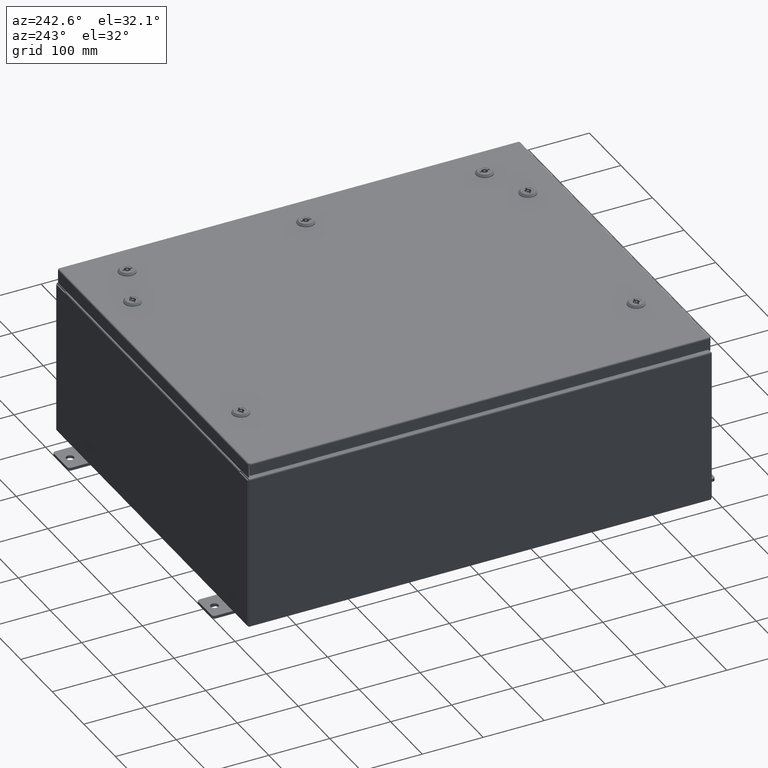
[diagram: clean part render]
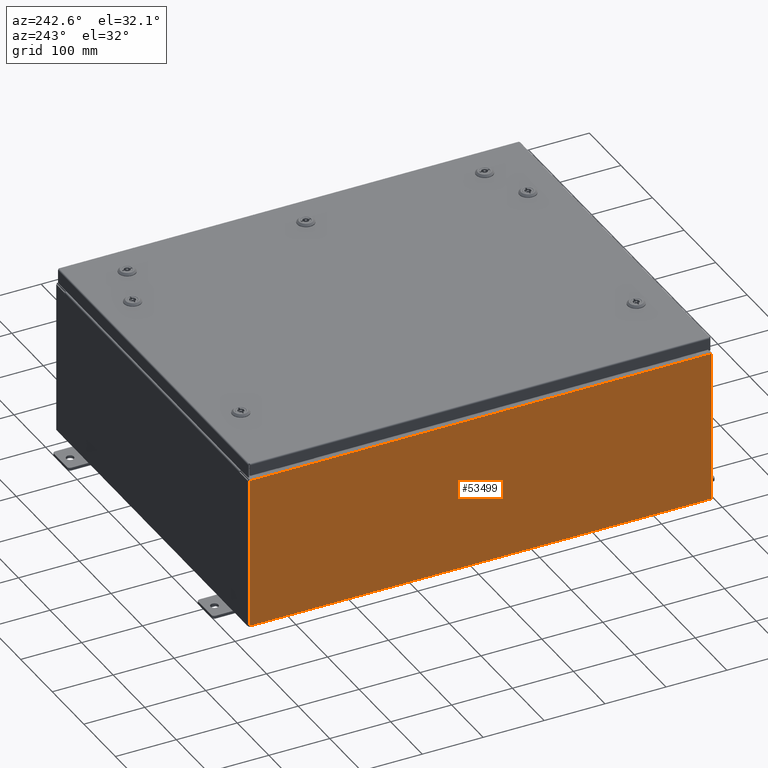
[diagram: same view with one face highlighted and labeled with its STEP entity id]
A machine part, auxiliary view. The second image highlights one B-rep face of the part: STEP entity #53499.
In plain terms, the highlighted planar face has unit normal (1, 0, 0).
Its self-contained STEP definition (entity closure, byte-faithful):
#1468 = DIRECTION ( 'NONE',  ( 0.0000000000000000000, 1.000000000000000000, 0.0000000000000000000 ) ) ;
#1867 = CARTESIAN_POINT ( 'NONE',  ( -12.00000000000000500, 14.92530000000000000, 0.01299999999999984700 ) ) ;
#2361 = CARTESIAN_POINT ( 'NONE',  ( -12.00000000000000500, 14.92530000000000000, -4.253780798634224700E-014 ) ) ;
#4883 = VECTOR ( 'NONE', #20546, 39.37007874015748100 ) ;
#4900 = VECTOR ( 'NONE', #1468, 39.37007874015748100 ) ;
#5672 = EDGE_CURVE ( 'NONE', #6601, #21232, #57567, .T. ) ;
#6601 = VERTEX_POINT ( 'NONE', #23718 ) ;
#11654 = PLANE ( 'NONE',  #25722 ) ;
#14205 = LINE ( 'NONE', #2361, #38914 ) ;
#20321 = EDGE_CURVE ( 'NONE', #21232, #28129, #14205, .T. ) ;
#20546 = DIRECTION ( 'NONE',  ( -3.523082860860888200E-015, 0.0000000000000000000, 1.000000000000000000 ) ) ;
#21232 = VERTEX_POINT ( 'NONE', #46983 ) ;
#22812 = ORIENTED_EDGE ( 'NONE', *, *, #59961, .F. ) ;
#23718 = CARTESIAN_POINT ( 'NONE',  ( -12.00000000000004100, -14.92530000000000000, 9.837599999999998300 ) ) ;
#24373 = ORIENTED_EDGE ( 'NONE', *, *, #5672, .T. ) ;
#25722 = AXIS2_PLACEMENT_3D ( 'NONE', #26596, #61178, #31574 ) ;
#26226 = CARTESIAN_POINT ( 'NONE',  ( -12.00000000000004100, -14.92530000000000000, 9.837599999999998300 ) ) ;
#26596 = CARTESIAN_POINT ( 'NONE',  ( -12.00000000000000500, 0.0000000000000000000, -4.253780798634224700E-014 ) ) ;
#26604 = FACE_OUTER_BOUND ( 'NONE', #29845, .T. ) ;
#28129 = VERTEX_POINT ( 'NONE', #42718 ) ;
#29845 = EDGE_LOOP ( 'NONE', ( #24373, #41507, #22812, #61326 ) ) ;
#31574 = DIRECTION ( 'NONE',  ( 3.523082860860887800E-015, 0.0000000000000000000, -1.000000000000000000 ) ) ;
#35429 = CARTESIAN_POINT ( 'NONE',  ( -12.00000000000000500, -14.92530000000000000, -4.253780798634224700E-014 ) ) ;
#38914 = VECTOR ( 'NONE', #46976, 39.37007874015748100 ) ;
#41507 = ORIENTED_EDGE ( 'NONE', *, *, #20321, .T. ) ;
#42718 = CARTESIAN_POINT ( 'NONE',  ( -12.00000000000000500, 14.92530000000000000, 0.01299999999999984300 ) ) ;
#42839 = LINE ( 'NONE', #35429, #4883 ) ;
#46976 = DIRECTION ( 'NONE',  ( 3.523082860860888200E-015, 0.0000000000000000000, -1.000000000000000000 ) ) ;
#46983 = CARTESIAN_POINT ( 'NONE',  ( -12.00000000000004100, 14.92530000000000000, 9.837599999999998300 ) ) ;
#49533 = VECTOR ( 'NONE', #51221, 39.37007874015748100 ) ;
#50005 = CARTESIAN_POINT ( 'NONE',  ( -12.00000000000000500, -14.92530000000000000, 0.01299999999999984700 ) ) ;
#51083 = LINE ( 'NONE', #1867, #49533 ) ;
#51221 = DIRECTION ( 'NONE',  ( -0.0000000000000000000, 1.000000000000000000, -0.0000000000000000000 ) ) ;
#51265 = VERTEX_POINT ( 'NONE', #50005 ) ;
#53380 = EDGE_CURVE ( 'NONE', #51265, #6601, #42839, .T. ) ;
#53499 = ADVANCED_FACE ( 'NONE', ( #26604 ), #11654, .F. ) ;
#57567 = LINE ( 'NONE', #26226, #4900 ) ;
#59961 = EDGE_CURVE ( 'NONE', #51265, #28129, #51083, .T. ) ;
#61178 = DIRECTION ( 'NONE',  ( 1.000000000000000000, 0.0000000000000000000, 3.523082860860887800E-015 ) ) ;
#61326 = ORIENTED_EDGE ( 'NONE', *, *, #53380, .T. ) ;